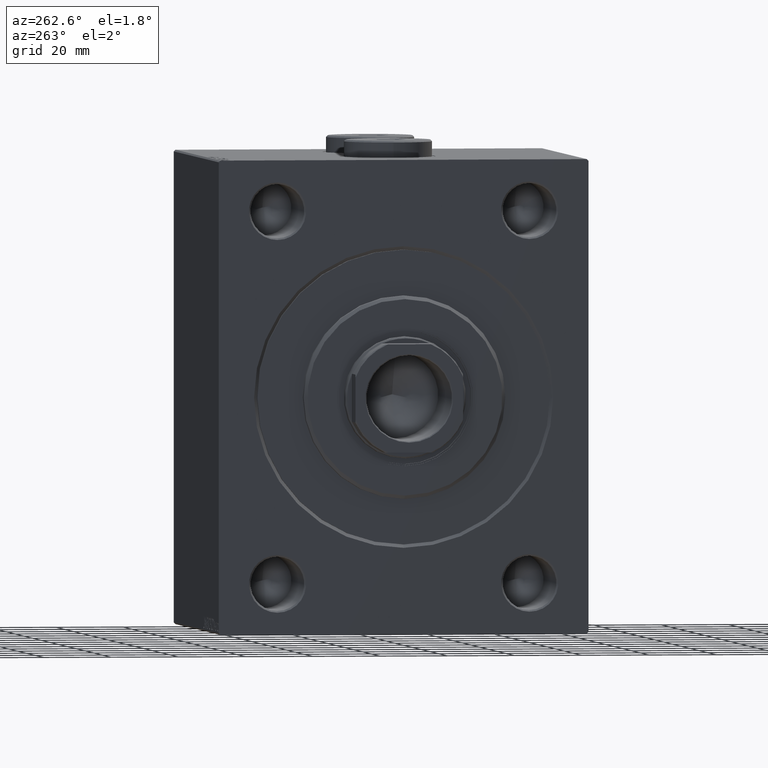
[diagram: clean part render]
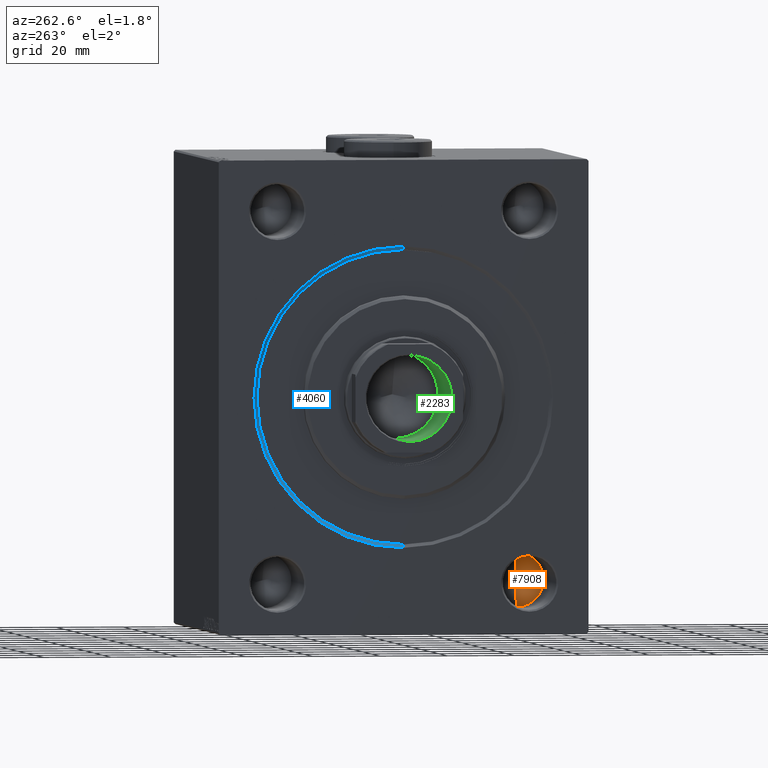
[diagram: same view with three faces highlighted in distinct colors, each labeled with its STEP entity id]
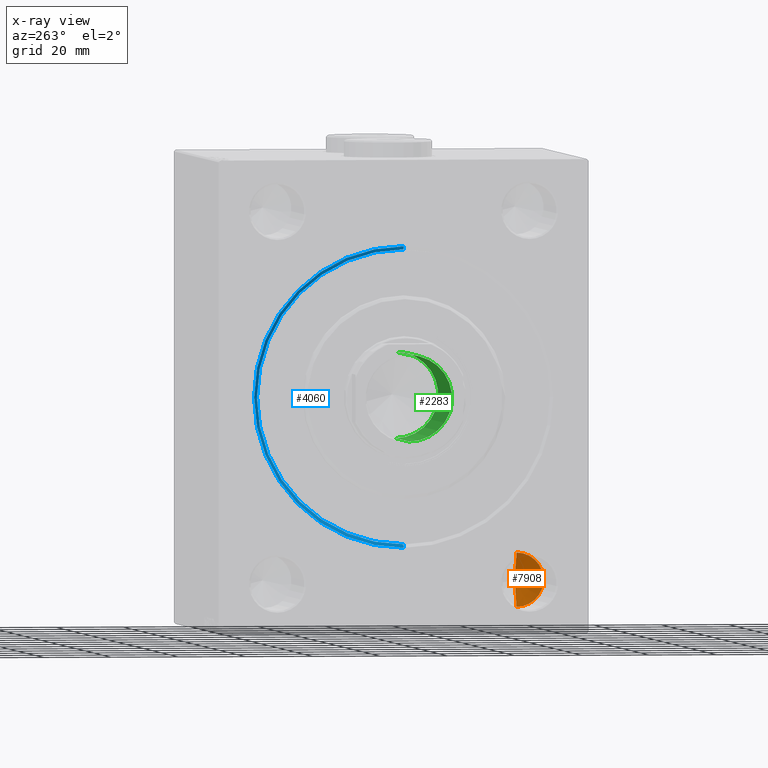
[diagram: x-ray of the same camera — body ghosted, the three highlighted faces saturated]
A machine part, auxiliary view with three faces highlighted in distinct colors.
The next image is the same camera in x-ray (body ghosted, the three faces saturated) — at least one of them is partly hidden behind the body in this view.
Their STEP definitions:

[orange] entity #7908 — the highlighted conical surface has half-angle 59 deg.
#2275 = DIRECTION ( 'NONE',  ( -0.5150380749100550437, 1.049727191138617956E-16, -0.8571673007021117785 ) ) ;
#4182 = CARTESIAN_POINT ( 'NONE',  ( 30.00000000000000000, -37.49999999999999289, -54.99999999999999289 ) ) ;
#5023 = LINE ( 'NONE', #23187, #20615 ) ;
#7908 = ADVANCED_FACE ( 'NONE', ( #21664 ), #27101, .F. ) ;
#9917 = DIRECTION ( 'NONE',  ( -1.000000000000000000, -0.000000000000000000, -0.000000000000000000 ) ) ;
#12775 = VECTOR ( 'NONE', #41645, 1000.000000000000000 ) ;
#13208 = CIRCLE ( 'NONE', #30821, 7.999999999999992895 ) ;
#14326 = CARTESIAN_POINT ( 'NONE',  ( 30.00000000000000000, -37.49999999999999289, -47.00000000000000000 ) ) ;
#16452 = EDGE_LOOP ( 'NONE', ( #35618, #30953, #29220 ) ) ;
#16650 = EDGE_CURVE ( 'NONE', #39133, #28559, #5023, .T. ) ;
#17041 = DIRECTION ( 'NONE',  ( 0.000000000000000000, 0.000000000000000000, 1.000000000000000000 ) ) ;
#19818 = LINE ( 'NONE', #26719, #12775 ) ;
#20615 = VECTOR ( 'NONE', #2275, 1000.000000000000000 ) ;
#21664 = FACE_OUTER_BOUND ( 'NONE', #16452, .T. ) ;
#23187 = CARTESIAN_POINT ( 'NONE',  ( 30.00000000000000000, -37.49999999999999289, -62.99999999999998579 ) ) ;
#26041 = DIRECTION ( 'NONE',  ( 0.000000000000000000, 0.000000000000000000, 1.000000000000000000 ) ) ;
#26384 = EDGE_CURVE ( 'NONE', #28559, #44726, #13208, .T. ) ;
#26719 = CARTESIAN_POINT ( 'NONE',  ( 30.00000000000000000, -37.49999999999999289, -47.00000000000000000 ) ) ;
#27101 = CONICAL_SURFACE ( 'NONE', #44734, 7.999999999999992895, 1.029744258676653423 ) ;
#27728 = CARTESIAN_POINT ( 'NONE',  ( 34.80688495222048573, -37.50000000000000000, -54.99999999999999289 ) ) ;
#28559 = VERTEX_POINT ( 'NONE', #31920 ) ;
#29220 = ORIENTED_EDGE ( 'NONE', *, *, #26384, .T. ) ;
#30821 = AXIS2_PLACEMENT_3D ( 'NONE', #44436, #9917, #17041 ) ;
#30953 = ORIENTED_EDGE ( 'NONE', *, *, #16650, .T. ) ;
#31920 = CARTESIAN_POINT ( 'NONE',  ( 30.00000000000000000, -37.49999999999999289, -62.99999999999998579 ) ) ;
#35618 = ORIENTED_EDGE ( 'NONE', *, *, #41989, .F. ) ;
#35703 = DIRECTION ( 'NONE',  ( -1.000000000000000000, -0.000000000000000000, -0.000000000000000000 ) ) ;
#39133 = VERTEX_POINT ( 'NONE', #27728 ) ;
#41645 = DIRECTION ( 'NONE',  ( -0.5150380749100550437, 0.000000000000000000, 0.8571673007021117785 ) ) ;
#41989 = EDGE_CURVE ( 'NONE', #39133, #44726, #19818, .T. ) ;
#44436 = CARTESIAN_POINT ( 'NONE',  ( 30.00000000000000000, -37.49999999999999289, -54.99999999999999289 ) ) ;
#44726 = VERTEX_POINT ( 'NONE', #14326 ) ;
#44734 = AXIS2_PLACEMENT_3D ( 'NONE', #4182, #35703, #26041 ) ;

[blue] entity #4060 — the highlighted conical surface has half-angle 45 deg.
#1314 = CARTESIAN_POINT ( 'NONE',  ( 0.000000000000000000, 0.000000000000000000, 0.000000000000000000 ) ) ;
#1343 = EDGE_CURVE ( 'NONE', #20166, #2697, #18138, .T. ) ;
#2697 = VERTEX_POINT ( 'NONE', #41004 ) ;
#4060 = ADVANCED_FACE ( 'NONE', ( #38181 ), #6432, .F. ) ;
#6432 = CONICAL_SURFACE ( 'NONE', #21864, 43.50000000000000000, 0.7853981633974552734 ) ;
#7559 = CARTESIAN_POINT ( 'NONE',  ( 1.000000000000000888, 5.327213576290986044E-15, -43.50000000000000000 ) ) ;
#8079 = CARTESIAN_POINT ( 'NONE',  ( 0.000000000000000000, 5.449678256205723559E-15, -44.50000000000001421 ) ) ;
#8366 = ORIENTED_EDGE ( 'NONE', *, *, #1343, .T. ) ;
#8998 = DIRECTION ( 'NONE',  ( -1.000000000000000000, 0.000000000000000000, 0.000000000000000000 ) ) ;
#10243 = EDGE_CURVE ( 'NONE', #39854, #16292, #11924, .T. ) ;
#10787 = DIRECTION ( 'NONE',  ( 0.000000000000000000, 0.000000000000000000, 1.000000000000000000 ) ) ;
#11924 = LINE ( 'NONE', #15604, #23380 ) ;
#12216 = DIRECTION ( 'NONE',  ( 0.000000000000000000, 0.000000000000000000, -1.000000000000000000 ) ) ;
#15353 = DIRECTION ( 'NONE',  ( 1.000000000000000000, 0.000000000000000000, 0.000000000000000000 ) ) ;
#15604 = CARTESIAN_POINT ( 'NONE',  ( 1.000000000000000888, 5.327213576290986044E-15, -43.50000000000000000 ) ) ;
#16292 = VERTEX_POINT ( 'NONE', #8079 ) ;
#16397 = ORIENTED_EDGE ( 'NONE', *, *, #20366, .F. ) ;
#18138 = LINE ( 'NONE', #21376, #37934 ) ;
#19570 = CARTESIAN_POINT ( 'NONE',  ( 1.000000000000000888, 0.000000000000000000, 0.000000000000000000 ) ) ;
#20166 = VERTEX_POINT ( 'NONE', #40480 ) ;
#20366 = EDGE_CURVE ( 'NONE', #16292, #2697, #23449, .T. ) ;
#20692 = CARTESIAN_POINT ( 'NONE',  ( 1.000000000000000888, 0.000000000000000000, 0.000000000000000000 ) ) ;
#21376 = CARTESIAN_POINT ( 'NONE',  ( 1.000000000000000888, 0.000000000000000000, 43.50000000000000000 ) ) ;
#21810 = ORIENTED_EDGE ( 'NONE', *, *, #10243, .F. ) ;
#21864 = AXIS2_PLACEMENT_3D ( 'NONE', #20692, #31719, #10787 ) ;
#23380 = VECTOR ( 'NONE', #25250, 1000.000000000000000 ) ;
#23449 = CIRCLE ( 'NONE', #42553, 44.50000000000001421 ) ;
#25250 = DIRECTION ( 'NONE',  ( -0.7071067811865426878, 8.659560562354994488E-17, -0.7071067811865524577 ) ) ;
#29593 = DIRECTION ( 'NONE',  ( 0.000000000000000000, 0.000000000000000000, -1.000000000000000000 ) ) ;
#30231 = CIRCLE ( 'NONE', #32463, 43.50000000000000000 ) ;
#31666 = EDGE_CURVE ( 'NONE', #20166, #39854, #30231, .T. ) ;
#31719 = DIRECTION ( 'NONE',  ( -1.000000000000000000, 0.000000000000000000, 0.000000000000000000 ) ) ;
#32463 = AXIS2_PLACEMENT_3D ( 'NONE', #19570, #8998, #12216 ) ;
#33148 = ORIENTED_EDGE ( 'NONE', *, *, #31666, .F. ) ;
#35415 = DIRECTION ( 'NONE',  ( -0.7071067811865426878, 0.000000000000000000, 0.7071067811865524577 ) ) ;
#36894 = EDGE_LOOP ( 'NONE', ( #21810, #33148, #8366, #16397 ) ) ;
#37934 = VECTOR ( 'NONE', #35415, 1000.000000000000000 ) ;
#38181 = FACE_OUTER_BOUND ( 'NONE', #36894, .T. ) ;
#39854 = VERTEX_POINT ( 'NONE', #7559 ) ;
#40480 = CARTESIAN_POINT ( 'NONE',  ( 1.000000000000000888, 0.000000000000000000, 43.50000000000000000 ) ) ;
#41004 = CARTESIAN_POINT ( 'NONE',  ( 0.000000000000000000, 0.000000000000000000, 44.50000000000001421 ) ) ;
#42553 = AXIS2_PLACEMENT_3D ( 'NONE', #1314, #15353, #29593 ) ;

[green] entity #2283 — the highlighted cylindrical surface (partial cylindrical patch) has radius 12.75 mm, axis along (-1, 0, 0).
#1494 = EDGE_LOOP ( 'NONE', ( #40567, #37718, #6262, #7379 ) ) ;
#1742 = CARTESIAN_POINT ( 'NONE',  ( 0.000000000000000000, 0.000000000000000000, 64.00000000000000000 ) ) ;
#1991 = CIRCLE ( 'NONE', #16661, 12.74999999999999467 ) ;
#2283 = ADVANCED_FACE ( 'NONE', ( #29785 ), #43380, .F. ) ;
#2369 = EDGE_CURVE ( 'NONE', #25255, #39582, #1991, .T. ) ;
#4093 = CARTESIAN_POINT ( 'NONE',  ( 12.74999999999999645, 0.000000000000000000, 63.70000000000000995 ) ) ;
#5914 = VECTOR ( 'NONE', #13502, 1000.000000000000000 ) ;
#6082 = DIRECTION ( 'NONE',  ( -0.000000000000000000, -0.000000000000000000, 1.000000000000000000 ) ) ;
#6262 = ORIENTED_EDGE ( 'NONE', *, *, #41770, .T. ) ;
#6428 = VECTOR ( 'NONE', #24893, 1000.000000000000000 ) ;
#6950 = DIRECTION ( 'NONE',  ( 1.000000000000000000, 0.000000000000000000, 0.000000000000000000 ) ) ;
#7379 = ORIENTED_EDGE ( 'NONE', *, *, #28691, .F. ) ;
#7654 = EDGE_CURVE ( 'NONE', #25255, #25483, #10858, .T. ) ;
#10858 = LINE ( 'NONE', #17536, #6428 ) ;
#12992 = CARTESIAN_POINT ( 'NONE',  ( 0.000000000000000000, 0.000000000000000000, 32.00000000000000000 ) ) ;
#13502 = DIRECTION ( 'NONE',  ( -0.000000000000000000, -0.000000000000000000, 1.000000000000000000 ) ) ;
#16661 = AXIS2_PLACEMENT_3D ( 'NONE', #12992, #6082, #44506 ) ;
#17536 = CARTESIAN_POINT ( 'NONE',  ( -12.74999999999999645, 1.561424668912874717E-15, 64.00000000000000000 ) ) ;
#17830 = CARTESIAN_POINT ( 'NONE',  ( -12.74999999999999467, 1.561424668912874519E-15, 32.00000000000000000 ) ) ;
#19950 = CARTESIAN_POINT ( 'NONE',  ( 12.74999999999999645, 0.000000000000000000, 64.00000000000000000 ) ) ;
#22530 = AXIS2_PLACEMENT_3D ( 'NONE', #1742, #36707, #43831 ) ;
#24509 = AXIS2_PLACEMENT_3D ( 'NONE', #38693, #29014, #6950 ) ;
#24893 = DIRECTION ( 'NONE',  ( -0.000000000000000000, -0.000000000000000000, 1.000000000000000000 ) ) ;
#25255 = VERTEX_POINT ( 'NONE', #17830 ) ;
#25483 = VERTEX_POINT ( 'NONE', #26565 ) ;
#26565 = CARTESIAN_POINT ( 'NONE',  ( -12.74999999999999645, 1.561424668912874717E-15, 63.70000000000000995 ) ) ;
#28691 = EDGE_CURVE ( 'NONE', #39582, #29422, #30958, .T. ) ;
#29014 = DIRECTION ( 'NONE',  ( 0.000000000000000000, 0.000000000000000000, 1.000000000000000000 ) ) ;
#29422 = VERTEX_POINT ( 'NONE', #4093 ) ;
#29785 = FACE_OUTER_BOUND ( 'NONE', #1494, .T. ) ;
#30958 = LINE ( 'NONE', #19950, #5914 ) ;
#36143 = CARTESIAN_POINT ( 'NONE',  ( 12.74999999999999467, 0.000000000000000000, 32.00000000000000000 ) ) ;
#36707 = DIRECTION ( 'NONE',  ( -0.000000000000000000, -0.000000000000000000, 1.000000000000000000 ) ) ;
#37718 = ORIENTED_EDGE ( 'NONE', *, *, #7654, .T. ) ;
#38693 = CARTESIAN_POINT ( 'NONE',  ( 0.000000000000000000, 0.000000000000000000, 63.70000000000000995 ) ) ;
#39582 = VERTEX_POINT ( 'NONE', #36143 ) ;
#40567 = ORIENTED_EDGE ( 'NONE', *, *, #2369, .F. ) ;
#41437 = CIRCLE ( 'NONE', #24509, 12.74999999999999645 ) ;
#41770 = EDGE_CURVE ( 'NONE', #25483, #29422, #41437, .T. ) ;
#43380 = CYLINDRICAL_SURFACE ( 'NONE', #22530, 12.74999999999999645 ) ;
#43831 = DIRECTION ( 'NONE',  ( 1.000000000000000000, 0.000000000000000000, 0.000000000000000000 ) ) ;
#44506 = DIRECTION ( 'NONE',  ( 1.000000000000000000, 0.000000000000000000, 0.000000000000000000 ) ) ;